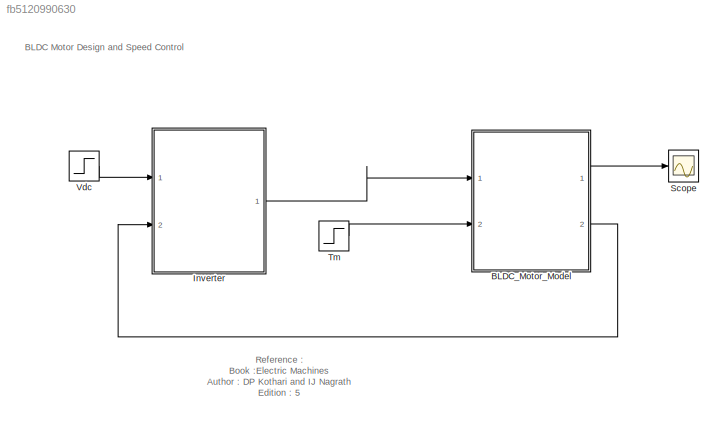
MODEL slx_fb5120990630
KIND model
CONFIG AbsTol = auto
CONFIG EnableMultiTasking = off
CONFIG FixedStep = auto
CONFIG InitFcn = Vdc=6;\nTm=3.53e-3;\nJ=2.12e-6;\nDm=6.04e-6;\nLss=10.1e-3;\nrs=5.2;\nLam=1.65e-2;\nTs=Lss/rs;\nP=4;
CONFIG MaxStep = auto
CONFIG MinStep = auto
CONFIG PostLoadFcn = Vdc=6;\nTm=3.53e-3;\nJ=2.12e-6;\nDm=6.04e-6;\nLss=10.1e-3;\nrs=5.2;\nLam=1.65e-2;\nTs=Lss/rs;\nP=4;
CONFIG RelTol = 1e-3
CONFIG SampleTimeConstraint = Unconstrained
CONFIG SolverName = VariableStepAuto
CONFIG StartTime = 0.0
CONFIG StopTime = 0.5
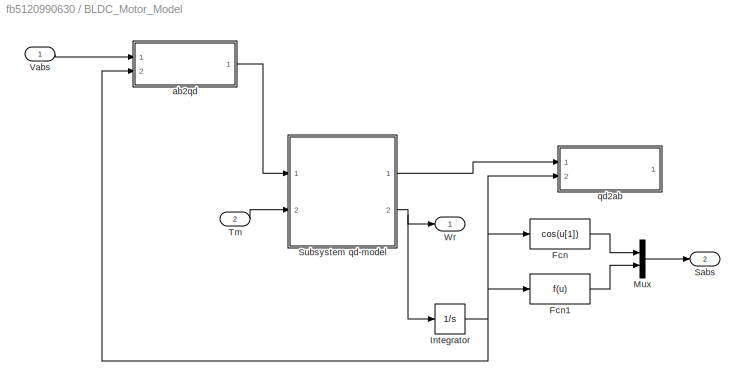
BLOCK [SubSystem] BLDC_Motor_Model
  Ports = [2, 2]
  RequestExecContextInheritance = off
BLOCK [Fcn] BLDC_Motor_Model/Fcn
  Expr = cos(u[1])
BLOCK [Fcn] BLDC_Motor_Model/Fcn1
BLOCK [Integrator] BLDC_Motor_Model/Integrator
  Ports = [1, 1]
BLOCK [Mux] BLDC_Motor_Model/Mux
  DisplayOption = bar
  Inputs = 2
  Ports = [2, 1]
BLOCK [Outport] BLDC_Motor_Model/Sabs
  Port = 2
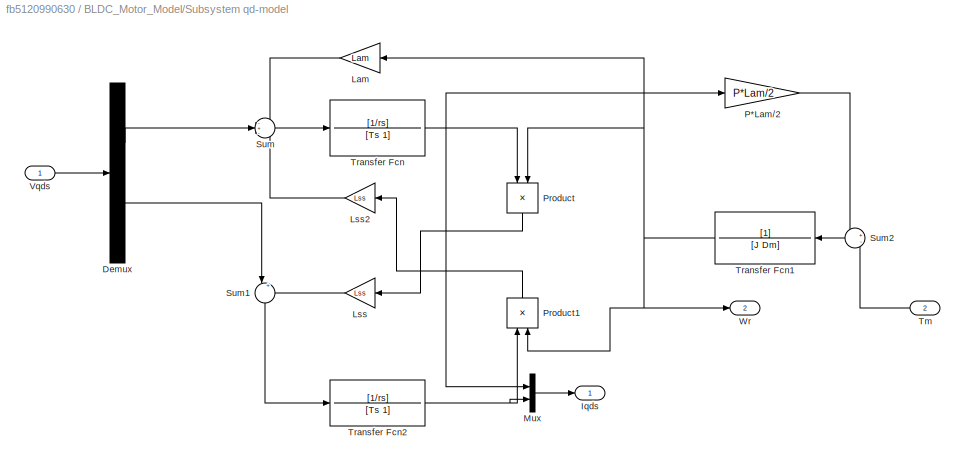
BLOCK [SubSystem] BLDC_Motor_Model/Subsystem qd-model
  Ports = [2, 2]
  RequestExecContextInheritance = off
BLOCK [Demux] BLDC_Motor_Model/Subsystem qd-model/Demux
  Outputs = 2
  Ports = [1, 2]
BLOCK [Outport] BLDC_Motor_Model/Subsystem qd-model/Iqds
BLOCK [Gain] BLDC_Motor_Model/Subsystem qd-model/Lam
  Gain = Lam
BLOCK [Gain] BLDC_Motor_Model/Subsystem qd-model/Lss
  Gain = Lss
BLOCK [Gain] BLDC_Motor_Model/Subsystem qd-model/Lss2
  Gain = Lss
BLOCK [Mux] BLDC_Motor_Model/Subsystem qd-model/Mux
  DisplayOption = bar
  Inputs = 2
  Ports = [2, 1]
BLOCK [Gain] BLDC_Motor_Model/Subsystem qd-model/P*Lam//2
  Gain = P*Lam/2
BLOCK [Product] BLDC_Motor_Model/Subsystem qd-model/Product
  NameLocation = left
  Ports = [2, 1]
BLOCK [Product] BLDC_Motor_Model/Subsystem qd-model/Product1
  NameLocation = right
  Ports = [2, 1]
BLOCK [Sum] BLDC_Motor_Model/Subsystem qd-model/Sum
  Inputs = -+-
  Ports = [3, 1]
BLOCK [Sum] BLDC_Motor_Model/Subsystem qd-model/Sum1
  Inputs = |++
  NameLocation = left
  Ports = [2, 1]
BLOCK [Sum] BLDC_Motor_Model/Subsystem qd-model/Sum2
  Inputs = +-
  Ports = [2, 1]
BLOCK [Inport] BLDC_Motor_Model/Subsystem qd-model/Tm
  Port = 2
BLOCK [TransferFcn] BLDC_Motor_Model/Subsystem qd-model/Transfer Fcn
  Denominator = [Ts 1]
  Numerator = [1/rs]
BLOCK [TransferFcn] BLDC_Motor_Model/Subsystem qd-model/Transfer Fcn1
  Denominator = [J Dm]
BLOCK [TransferFcn] BLDC_Motor_Model/Subsystem qd-model/Transfer Fcn2
  Denominator = [Ts 1]
  Numerator = [1/rs]
BLOCK [Inport] BLDC_Motor_Model/Subsystem qd-model/Vqds
BLOCK [Outport] BLDC_Motor_Model/Subsystem qd-model/Wr
  Port = 2
BLOCK [Inport] BLDC_Motor_Model/Tm
  Port = 2
BLOCK [Inport] BLDC_Motor_Model/Vabs
BLOCK [Outport] BLDC_Motor_Model/Wr
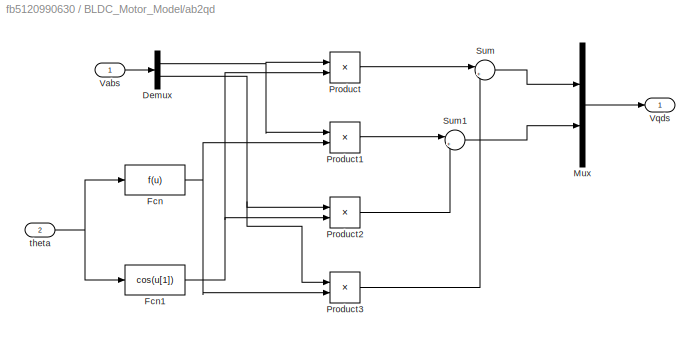
BLOCK [SubSystem] BLDC_Motor_Model/ab2qd
  Ports = [2, 1]
  RequestExecContextInheritance = off
BLOCK [Outport] BLDC_Motor_Model/ab2qd/ Vqds
BLOCK [Demux] BLDC_Motor_Model/ab2qd/Demux
  Outputs = 2
  Ports = [1, 2]
BLOCK [Fcn] BLDC_Motor_Model/ab2qd/Fcn
BLOCK [Fcn] BLDC_Motor_Model/ab2qd/Fcn1
  Expr = cos(u[1])
BLOCK [Mux] BLDC_Motor_Model/ab2qd/Mux
  DisplayOption = bar
  Inputs = 2
  Ports = [2, 1]
BLOCK [Product] BLDC_Motor_Model/ab2qd/Product
  Ports = [2, 1]
BLOCK [Product] BLDC_Motor_Model/ab2qd/Product1
  Ports = [2, 1]
BLOCK [Product] BLDC_Motor_Model/ab2qd/Product2
  Ports = [2, 1]
BLOCK [Product] BLDC_Motor_Model/ab2qd/Product3
  Ports = [2, 1]
BLOCK [Sum] BLDC_Motor_Model/ab2qd/Sum
  Inputs = |++
  Ports = [2, 1]
BLOCK [Sum] BLDC_Motor_Model/ab2qd/Sum1
  Inputs = |+-
  Ports = [2, 1]
BLOCK [Inport] BLDC_Motor_Model/ab2qd/Vabs
BLOCK [Inport] BLDC_Motor_Model/ab2qd/theta
  Port = 2
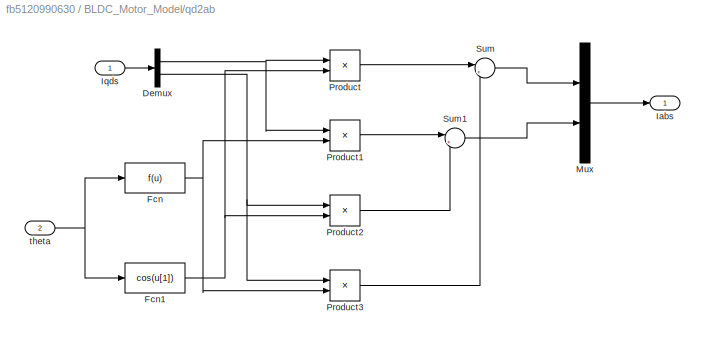
BLOCK [SubSystem] BLDC_Motor_Model/qd2ab
  Ports = [2, 1]
  RequestExecContextInheritance = off
BLOCK [Outport] BLDC_Motor_Model/qd2ab/ Iabs
BLOCK [Demux] BLDC_Motor_Model/qd2ab/Demux
  Outputs = 2
  Ports = [1, 2]
BLOCK [Fcn] BLDC_Motor_Model/qd2ab/Fcn
BLOCK [Fcn] BLDC_Motor_Model/qd2ab/Fcn1
  Expr = cos(u[1])
BLOCK [Inport] BLDC_Motor_Model/qd2ab/Iqds
BLOCK [Mux] BLDC_Motor_Model/qd2ab/Mux
  DisplayOption = bar
  Inputs = 2
  Ports = [2, 1]
BLOCK [Product] BLDC_Motor_Model/qd2ab/Product
  Ports = [2, 1]
BLOCK [Product] BLDC_Motor_Model/qd2ab/Product1
  Ports = [2, 1]
BLOCK [Product] BLDC_Motor_Model/qd2ab/Product2
  Ports = [2, 1]
BLOCK [Product] BLDC_Motor_Model/qd2ab/Product3
  Ports = [2, 1]
BLOCK [Sum] BLDC_Motor_Model/qd2ab/Sum
  Inputs = |++
  Ports = [2, 1]
BLOCK [Sum] BLDC_Motor_Model/qd2ab/Sum1
  Inputs = |+-
  Ports = [2, 1]
BLOCK [Inport] BLDC_Motor_Model/qd2ab/theta
  Port = 2
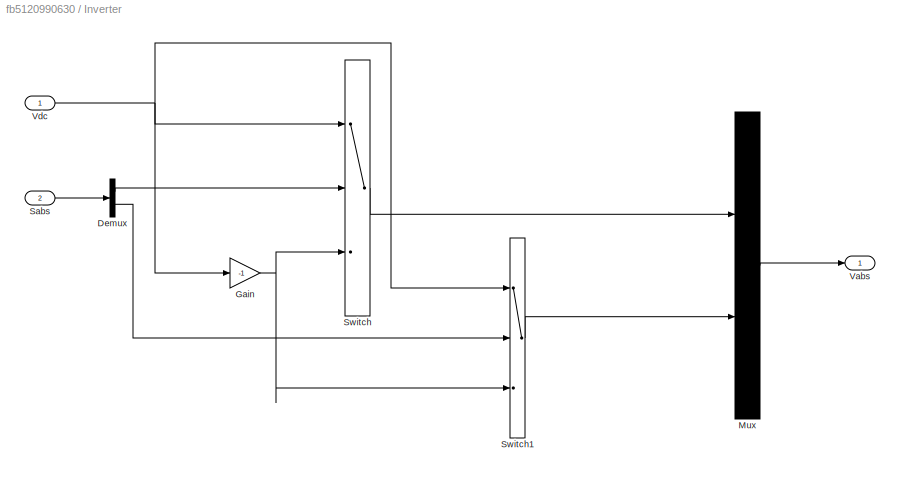
BLOCK [SubSystem] Inverter
  Ports = [2, 1]
  RequestExecContextInheritance = off
  TreatAsAtomicUnit = on
BLOCK [Demux] Inverter/Demux
  Outputs = 2
  Ports = [1, 2]
BLOCK [Gain] Inverter/Gain
  Gain = -1
BLOCK [Mux] Inverter/Mux
  DisplayOption = bar
  Inputs = 2
  Ports = [2, 1]
BLOCK [Inport] Inverter/Sabs
  Port = 2
BLOCK [Switch] Inverter/Switch
  Criteria = u2 > Threshold
  InputSameDT = off
  SaturateOnIntegerOverflow = off
BLOCK [Switch] Inverter/Switch1
  Criteria = u2 > Threshold
  InputSameDT = off
  SaturateOnIntegerOverflow = off
BLOCK [Outport] Inverter/Vabs
BLOCK [Inport] Inverter/Vdc
BLOCK [Scope] Scope
  Floating = off
  NumInputPorts = 1
  Ports = [1]
  ScopeSpecificationString = Simulink.scopes.TimeScopeBlockCfg('CurrentConfiguration', extmgr.ConfigurationSet(extmgr.Configuration('Core','General UI',true),extmgr.Configuration('Core','Source UI',true),extmgr.Configuration('Sources','WiredSimulink',true),extmgr.Configuration('Visuals','Time Domain',true,'SerializedDisplays',{struct('MinYLimReal','-52.92483','MaxYLimReal','476.32347','YLabelReal','','MinYLimMag','0.00000','M...<+1348ch>
BLOCK [Step] Tm
  After = Tm
  SampleTime = 0
  Time = 0.5
BLOCK [Step] Vdc
  After = Vdc
  SampleTime = 0
  Time = 0.05
ANNOTATION (root): BLDC Motor Design and Speed Control
ANNOTATION (root): Reference : Book :Electric Machines Author : DP Kothari and IJ Nagrath Edition : 5
LINE BLDC_Motor_Model/Fcn1:1 -> BLDC_Motor_Model/Mux:2
LINE BLDC_Motor_Model/Fcn:1 -> BLDC_Motor_Model/Mux:1
NET BLDC_Motor_Model/Integrator:1 -> BLDC_Motor_Model/Fcn1:1, BLDC_Motor_Model/Fcn:1, BLDC_Motor_Model/ab2qd:2, BLDC_Motor_Model/qd2ab:2
LINE BLDC_Motor_Model/Mux:1 -> BLDC_Motor_Model/Sabs:1
LINE BLDC_Motor_Model/Subsystem qd-model/Demux:1 -> BLDC_Motor_Model/Subsystem qd-model/Sum:2
LINE BLDC_Motor_Model/Subsystem qd-model/Demux:2 -> BLDC_Motor_Model/Subsystem qd-model/Sum1:1
LINE BLDC_Motor_Model/Subsystem qd-model/Lam:1 -> BLDC_Motor_Model/Subsystem qd-model/Sum:1
LINE BLDC_Motor_Model/Subsystem qd-model/Lss2:1 -> BLDC_Motor_Model/Subsystem qd-model/Sum:3
LINE BLDC_Motor_Model/Subsystem qd-model/Lss:1 -> BLDC_Motor_Model/Subsystem qd-model/Sum1:2
LINE BLDC_Motor_Model/Subsystem qd-model/Mux:1 -> BLDC_Motor_Model/Subsystem qd-model/Iqds:1
LINE BLDC_Motor_Model/Subsystem qd-model/P*Lam//2:1 -> BLDC_Motor_Model/Subsystem qd-model/Sum2:1
LINE BLDC_Motor_Model/Subsystem qd-model/Product1:1 -> BLDC_Motor_Model/Subsystem qd-model/Lss2:1
LINE BLDC_Motor_Model/Subsystem qd-model/Product:1 -> BLDC_Motor_Model/Subsystem qd-model/Lss:1
LINE BLDC_Motor_Model/Subsystem qd-model/Sum1:1 -> BLDC_Motor_Model/Subsystem qd-model/Transfer Fcn2:1
LINE BLDC_Motor_Model/Subsystem qd-model/Sum2:1 -> BLDC_Motor_Model/Subsystem qd-model/Transfer Fcn1:1
LINE BLDC_Motor_Model/Subsystem qd-model/Sum:1 -> BLDC_Motor_Model/Subsystem qd-model/Transfer Fcn:1
LINE BLDC_Motor_Model/Subsystem qd-model/Tm:1 -> BLDC_Motor_Model/Subsystem qd-model/Sum2:2
NET BLDC_Motor_Model/Subsystem qd-model/Transfer Fcn1:1 -> BLDC_Motor_Model/Subsystem qd-model/Lam:1, BLDC_Motor_Model/Subsystem qd-model/Product1:2, BLDC_Motor_Model/Subsystem qd-model/Product:2, BLDC_Motor_Model/Subsystem qd-model/Wr:1
NET BLDC_Motor_Model/Subsystem qd-model/Transfer Fcn2:1 -> BLDC_Motor_Model/Subsystem qd-model/Mux:2, BLDC_Motor_Model/Subsystem qd-model/Product1:1
NET BLDC_Motor_Model/Subsystem qd-model/Transfer Fcn:1 -> BLDC_Motor_Model/Subsystem qd-model/Mux:1, BLDC_Motor_Model/Subsystem qd-model/P*Lam//2:1, BLDC_Motor_Model/Subsystem qd-model/Product:1
LINE BLDC_Motor_Model/Subsystem qd-model/Vqds:1 -> BLDC_Motor_Model/Subsystem qd-model/Demux:1
LINE BLDC_Motor_Model/Subsystem qd-model:1 -> BLDC_Motor_Model/qd2ab:1
NET BLDC_Motor_Model/Subsystem qd-model:2 -> BLDC_Motor_Model/Integrator:1, BLDC_Motor_Model/Wr:1
LINE BLDC_Motor_Model/Tm:1 -> BLDC_Motor_Model/Subsystem qd-model:2
LINE BLDC_Motor_Model/Vabs:1 -> BLDC_Motor_Model/ab2qd:1
NET BLDC_Motor_Model/ab2qd/Demux:1 -> BLDC_Motor_Model/ab2qd/Product1:1, BLDC_Motor_Model/ab2qd/Product:1
NET BLDC_Motor_Model/ab2qd/Demux:2 -> BLDC_Motor_Model/ab2qd/Product2:1, BLDC_Motor_Model/ab2qd/Product3:1
NET BLDC_Motor_Model/ab2qd/Fcn1:1 -> BLDC_Motor_Model/ab2qd/Product2:2, BLDC_Motor_Model/ab2qd/Product:2
NET BLDC_Motor_Model/ab2qd/Fcn:1 -> BLDC_Motor_Model/ab2qd/Product1:2, BLDC_Motor_Model/ab2qd/Product3:2
LINE BLDC_Motor_Model/ab2qd/Mux:1 -> BLDC_Motor_Model/ab2qd/ Vqds:1
LINE BLDC_Motor_Model/ab2qd/Product1:1 -> BLDC_Motor_Model/ab2qd/Sum1:1
LINE BLDC_Motor_Model/ab2qd/Product2:1 -> BLDC_Motor_Model/ab2qd/Sum1:2
LINE BLDC_Motor_Model/ab2qd/Product3:1 -> BLDC_Motor_Model/ab2qd/Sum:2
LINE BLDC_Motor_Model/ab2qd/Product:1 -> BLDC_Motor_Model/ab2qd/Sum:1
LINE BLDC_Motor_Model/ab2qd/Sum1:1 -> BLDC_Motor_Model/ab2qd/Mux:2
LINE BLDC_Motor_Model/ab2qd/Sum:1 -> BLDC_Motor_Model/ab2qd/Mux:1
LINE BLDC_Motor_Model/ab2qd/Vabs:1 -> BLDC_Motor_Model/ab2qd/Demux:1
NET BLDC_Motor_Model/ab2qd/theta:1 -> BLDC_Motor_Model/ab2qd/Fcn1:1, BLDC_Motor_Model/ab2qd/Fcn:1
LINE BLDC_Motor_Model/ab2qd:1 -> BLDC_Motor_Model/Subsystem qd-model:1
NET BLDC_Motor_Model/qd2ab/Demux:1 -> BLDC_Motor_Model/qd2ab/Product1:1, BLDC_Motor_Model/qd2ab/Product:1
NET BLDC_Motor_Model/qd2ab/Demux:2 -> BLDC_Motor_Model/qd2ab/Product2:1, BLDC_Motor_Model/qd2ab/Product3:1
NET BLDC_Motor_Model/qd2ab/Fcn1:1 -> BLDC_Motor_Model/qd2ab/Product2:2, BLDC_Motor_Model/qd2ab/Product:2
NET BLDC_Motor_Model/qd2ab/Fcn:1 -> BLDC_Motor_Model/qd2ab/Product1:2, BLDC_Motor_Model/qd2ab/Product3:2
LINE BLDC_Motor_Model/qd2ab/Iqds:1 -> BLDC_Motor_Model/qd2ab/Demux:1
LINE BLDC_Motor_Model/qd2ab/Mux:1 -> BLDC_Motor_Model/qd2ab/ Iabs:1
LINE BLDC_Motor_Model/qd2ab/Product1:1 -> BLDC_Motor_Model/qd2ab/Sum1:1
LINE BLDC_Motor_Model/qd2ab/Product2:1 -> BLDC_Motor_Model/qd2ab/Sum1:2
LINE BLDC_Motor_Model/qd2ab/Product3:1 -> BLDC_Motor_Model/qd2ab/Sum:2
LINE BLDC_Motor_Model/qd2ab/Product:1 -> BLDC_Motor_Model/qd2ab/Sum:1
LINE BLDC_Motor_Model/qd2ab/Sum1:1 -> BLDC_Motor_Model/qd2ab/Mux:2
LINE BLDC_Motor_Model/qd2ab/Sum:1 -> BLDC_Motor_Model/qd2ab/Mux:1
NET BLDC_Motor_Model/qd2ab/theta:1 -> BLDC_Motor_Model/qd2ab/Fcn1:1, BLDC_Motor_Model/qd2ab/Fcn:1
LINE BLDC_Motor_Model:1 -> Scope:1
LINE BLDC_Motor_Model:2 -> Inverter:2
LINE Inverter/Demux:1 -> Inverter/Switch:2
LINE Inverter/Demux:2 -> Inverter/Switch1:2
NET Inverter/Gain:1 -> Inverter/Switch1:3, Inverter/Switch:3
LINE Inverter/Mux:1 -> Inverter/Vabs:1
LINE Inverter/Sabs:1 -> Inverter/Demux:1
LINE Inverter/Switch1:1 -> Inverter/Mux:2
LINE Inverter/Switch:1 -> Inverter/Mux:1
NET Inverter/Vdc:1 -> Inverter/Gain:1, Inverter/Switch1:1, Inverter/Switch:1
LINE Inverter:1 -> BLDC_Motor_Model:1
LINE Tm:1 -> BLDC_Motor_Model:2
LINE Vdc:1 -> Inverter:1
note: NET lines group one-source signal fan-out (src -> all destinations, sorted); 1:1 wires keep LINE
